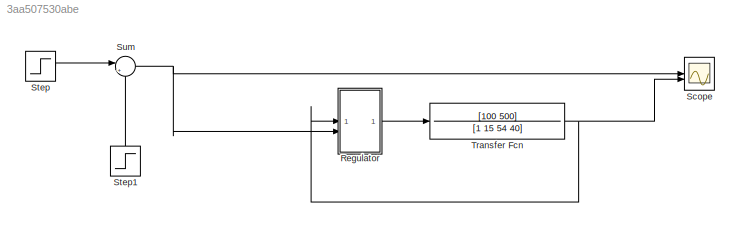
MODEL slx_3aa507530abe
KIND model
CONFIG AbsTol = auto
CONFIG EnableMultiTasking = off
CONFIG FixedStep = auto
CONFIG MaxStep = auto
CONFIG MinStep = auto
CONFIG RelTol = 1e-3
CONFIG SampleTimeConstraint = Unconstrained
CONFIG SolverName = VariableStepAuto
CONFIG StartTime = 0.0
CONFIG StopTime = 300
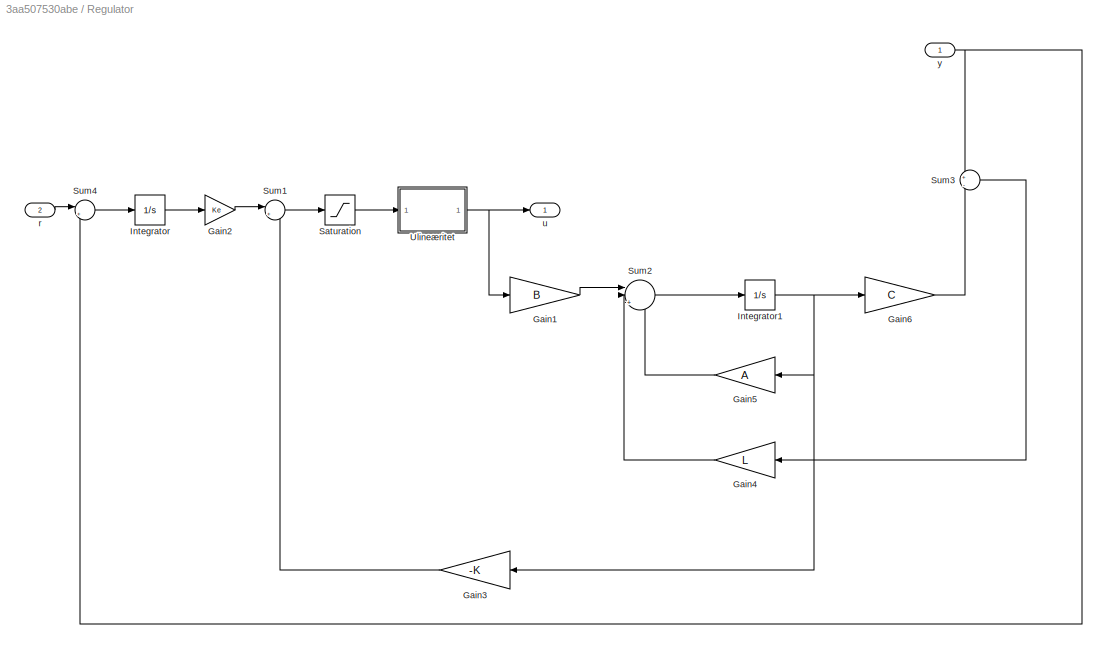
BLOCK [SubSystem] Regulator
BLOCK [Gain] Regulator/Gain1
  Gain = B
  Multiplication = Matrix(K*u)
BLOCK [Gain] Regulator/Gain2
  Gain = Ke
BLOCK [Gain] Regulator/Gain3
  Gain = -K
  Multiplication = Matrix(K*u)
  NameLocation = top
BLOCK [Gain] Regulator/Gain4
  Gain = L
  Multiplication = Matrix(K*u)
  NameLocation = top
BLOCK [Gain] Regulator/Gain5
  Gain = A
  Multiplication = Matrix(K*u)
  NameLocation = top
BLOCK [Gain] Regulator/Gain6
  Gain = C
  Multiplication = Matrix(K*u)
BLOCK [Integrator] Regulator/Integrator
BLOCK [Integrator] Regulator/Integrator1
BLOCK [Saturate] Regulator/Saturation
  LowerLimit = -1
  UpperLimit = 1
BLOCK [Sum] Regulator/Sum1
  Inputs = |++
BLOCK [Sum] Regulator/Sum2
  Inputs = ||+++
BLOCK [Sum] Regulator/Sum3
  Inputs = +|-
BLOCK [Sum] Regulator/Sum4
  Inputs = |+-
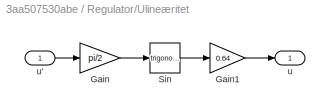
BLOCK [SubSystem] Regulator/Ulineæritet
BLOCK [Gain] Regulator/Ulineæritet/Gain
  Gain = pi/2
BLOCK [Gain] Regulator/Ulineæritet/Gain1
  Gain = 0.64
BLOCK [Trigonometry] Regulator/Ulineæritet/Sin
BLOCK [Outport] Regulator/Ulineæritet/u
BLOCK [Inport] Regulator/Ulineæritet/u'
BLOCK [Inport] Regulator/r
  Port = 2
BLOCK [Outport] Regulator/u
  IconDisplay = Port number and signal name
BLOCK [Inport] Regulator/y
BLOCK [Scope] Scope
  Floating = off
  NumInputPorts = 2
  ScopeSpecificationString = Simulink.scopes.TimeScopeBlockCfg('CurrentConfiguration', extmgr.ConfigurationSet(extmgr.Configuration('Core','General UI',true),extmgr.Configuration('Core','Source UI',true),extmgr.Configuration('Sources','WiredSimulink',true),extmgr.Configuration('Visuals','Time Domain',true,'SerializedDisplays',{struct('MinYLimReal','-1.00000','MaxYLimReal','9.00000','YLabelReal','','MinYLimMag','0.00000','MaxY...<+1861ch>
BLOCK [Step] Step
  After = 4
  SampleTime = 0
BLOCK [Step] Step1
  After = 4
  NameLocation = right
  SampleTime = 0
  Time = 40
BLOCK [Sum] Sum
  Inputs = |++
BLOCK [TransferFcn] Transfer Fcn
  Denominator = [1 15 54 40]
  Numerator = [100 500]
LINE Regulator/Gain1:1 -> Regulator/Sum2:1
LINE Regulator/Gain2:1 -> Regulator/Sum1:1
LINE Regulator/Gain3:1 -> Regulator/Sum1:2
LINE Regulator/Gain4:1 -> Regulator/Sum2:2
LINE Regulator/Gain5:1 -> Regulator/Sum2:3
LINE Regulator/Gain6:1 -> Regulator/Sum3:2
NET Regulator/Integrator1:1 -> Regulator/Gain3:1, Regulator/Gain5:1, Regulator/Gain6:1
LINE Regulator/Integrator:1 -> Regulator/Gain2:1
LINE Regulator/Saturation:1 -> Regulator/Ulineæritet:1
LINE Regulator/Sum1:1 -> Regulator/Saturation:1
LINE Regulator/Sum2:1 -> Regulator/Integrator1:1
LINE Regulator/Sum3:1 -> Regulator/Gain4:1
LINE Regulator/Sum4:1 -> Regulator/Integrator:1
LINE Regulator/Ulineæritet/Gain1:1 -> Regulator/Ulineæritet/u:1
LINE Regulator/Ulineæritet/Gain:1 -> Regulator/Ulineæritet/Sin:1
LINE Regulator/Ulineæritet/Sin:1 -> Regulator/Ulineæritet/Gain1:1
LINE Regulator/Ulineæritet/u':1 -> Regulator/Ulineæritet/Gain:1
NET Regulator/Ulineæritet:1 -> Regulator/Gain1:1, Regulator/u:1
LINE Regulator/r:1 -> Regulator/Sum4:1
NET Regulator/y:1 -> Regulator/Sum3:1, Regulator/Sum4:2
LINE Regulator:1 -> Transfer Fcn:1
LINE Step1:1 -> Sum:2
LINE Step:1 -> Sum:1
NET Sum:1 -> Regulator:2, Scope:1
NET Transfer Fcn:1 -> Regulator:1, Scope:2
note: NET lines group one-source signal fan-out (src -> all destinations, sorted); 1:1 wires keep LINE
